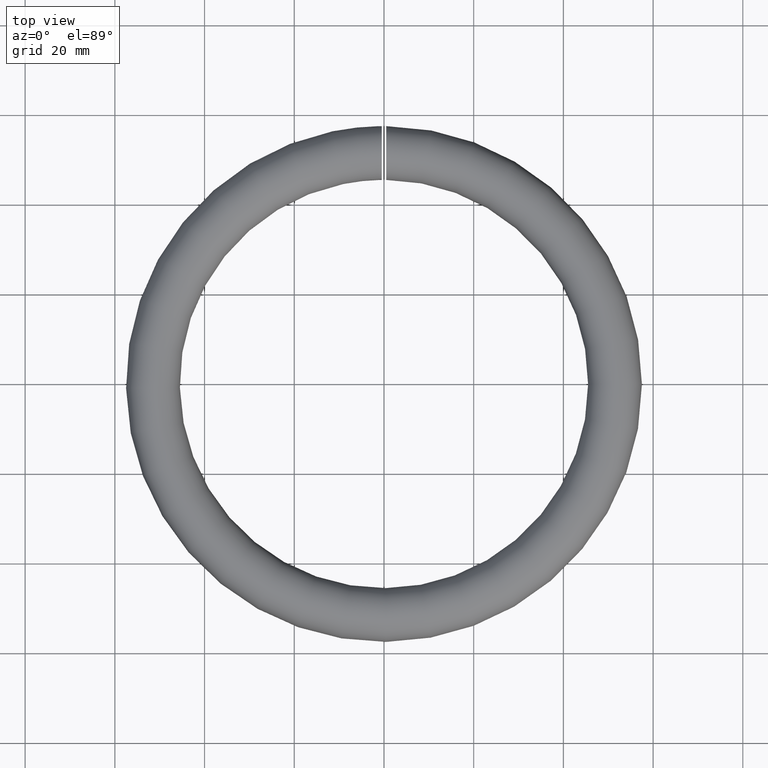
[diagram: clean part render]
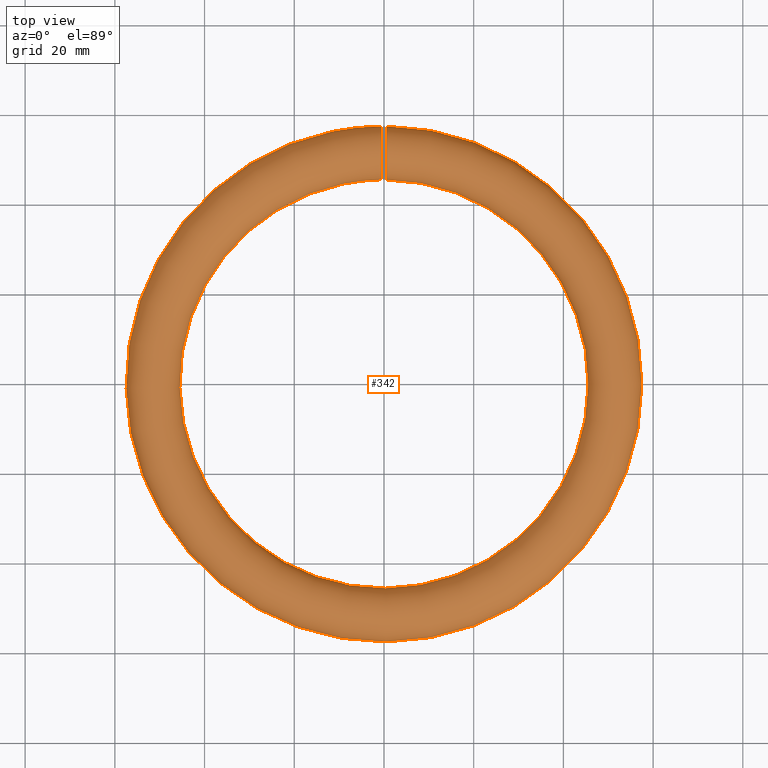
[diagram: same view with one face highlighted and labeled with its STEP entity id]
A machine part, top view. The second image highlights one B-rep face of the part: STEP entity #342.
In plain terms, the highlighted toroidal blend (fillet) surface has major radius 51.5 mm and minor (blend) radius 6 mm.
Its self-contained STEP definition (entity closure, byte-faithful):
#10 = CARTESIAN_POINT ( 'NONE',  ( -0.9179620124040548400, 45.76842501223460900, -1.804017274157504200 ) ) ;
#20 = CARTESIAN_POINT ( 'NONE',  ( -0.5000000000000000000, 45.49957517641046000, 0.3148097859573828500 ) ) ;
#49 = CARTESIAN_POINT ( 'NONE',  ( -0.5000000000000001100, 45.55122313939540400, 0.8461301988404297300 ) ) ;
#72 = CARTESIAN_POINT ( 'NONE',  ( -0.9999999999999458200, 45.90761121812014500, -2.201611370457569300 ) ) ;
#79 = CARTESIAN_POINT ( 'NONE',  ( -0.5000000000000001100, 45.76132208917330500, 1.760985417740103200 ) ) ;
#91 = CARTESIAN_POINT ( 'NONE',  ( 0.4999999999999998900, 54.02670736141599400, -5.444499195462920900 ) ) ;
#129 = CARTESIAN_POINT ( 'NONE',  ( -1.000000000000000000, 45.90220615707082900, -2.187812019814967100 ) ) ;
#160 = CARTESIAN_POINT ( 'NONE',  ( -0.7705680867293439600, 45.90739952802928800, -2.189265293628212200 ) ) ;
#163 = CARTESIAN_POINT ( 'NONE',  ( 0.4999999999999997800, 52.42120797418813500, 5.941379762480023500 ) ) ;
#243 = CARTESIAN_POINT ( 'NONE',  ( 0.4999999999999998900, 50.46231687184466400, 5.923039961871031000 ) ) ;
#291 = CARTESIAN_POINT ( 'NONE',  ( 0.5000000000000000000, 46.04158092334621000, -2.528242930976548400 ) ) ;
#342 = ADVANCED_FACE ( 'NONE', ( #8909, #9600 ), #6535, .T. ) ;
#372 = CARTESIAN_POINT ( 'NONE',  ( -0.5000000000000000000, 54.92417806533195100, 4.937627606192703100 ) ) ;
#456 = CARTESIAN_POINT ( 'NONE',  ( -0.4999999999999998900, 46.37742821344764400, 3.147558149794111400 ) ) ;
#491 = CARTESIAN_POINT ( 'NONE',  ( -0.5000000000000000000, 57.43902467030462600, 0.9073569362950142400 ) ) ;
#510 = CARTESIAN_POINT ( 'NONE',  ( -1.000000000000035700, 45.79214717049599400, -1.882798184896654600 ) ) ;
#541 = CARTESIAN_POINT ( 'NONE',  ( -0.5000000000000000000, 48.10209431327343300, -4.959379703118131000 ) ) ;
#571 = CARTESIAN_POINT ( 'NONE',  ( -0.5000000000000000000, 45.81578202283584000, -1.929697075605313100 ) ) ;
#611 = CARTESIAN_POINT ( 'NONE',  ( -0.7786524441768571900, 45.77075266325358900, -1.802538034448037500 ) ) ;
#619 = CARTESIAN_POINT ( 'NONE',  ( -0.5000000000000000000, 56.77211048576292300, 2.881418809495970300 ) ) ;
#655 = CARTESIAN_POINT ( 'NONE',  ( -0.5000000000000000000, 54.08375383184019100, -5.425366880214794700 ) ) ;
#659 = B_SPLINE_CURVE_WITH_KNOTS ( 'NONE', 3,
 ( #6730, #3130, #6805, #2416, #571, #5878 ),
 .UNSPECIFIED., .F., .F.,
 ( 4, 2, 4 ),
 ( 0.001932971461400299200, 0.002097493431344722700, 0.002262015401289146500 ),
 .UNSPECIFIED. ) ;
#664 = CARTESIAN_POINT ( 'NONE',  ( -0.5000000000000000000, 45.61278304241712800, -1.288762872369500600 ) ) ;
#704 = CARTESIAN_POINT ( 'NONE',  ( -1.000000000000000000, 45.76848764325509200, 1.809657481121427400 ) ) ;
#765 = CARTESIAN_POINT ( 'NONE',  ( -0.5000000000000002200, 45.65568821916286900, 1.369676404959427900 ) ) ;
#766 = VERTEX_POINT ( 'NONE', #9510 ) ;
#779 = B_SPLINE_CURVE_WITH_KNOTS ( 'NONE', 3,
 ( #3364, #10702, #611, #10, #7161, #7719, #6031 ),
 .UNSPECIFIED., .F., .F.,
 ( 4, 3, 4 ),
 ( 6.505213034913026600E-019, 0.0004180105945801995500, 0.0005000653353664220800 ),
 .UNSPECIFIED. ) ;
#806 = ORIENTED_EDGE ( 'NONE', *, *, #7562, .F. ) ;
#828 = CARTESIAN_POINT ( 'NONE',  ( -1.000000000000000000, 45.76699465159130400, -1.804932260004372900 ) ) ;
#856 = CARTESIAN_POINT ( 'NONE',  ( 0.5000000000000000000, 49.07218650690755600, -5.502067322898152900 ) ) ;
#892 = CARTESIAN_POINT ( 'NONE',  ( 0.5000000000000000000, 54.72485829750186800, -5.073603244698448500 ) ) ;
#924 = CARTESIAN_POINT ( 'NONE',  ( 0.5000000000000002200, 51.75083583727930400, -6.007619549338419200 ) ) ;
#971 = CARTESIAN_POINT ( 'NONE',  ( -0.5000000000000000000, 45.49136223346428000, 0.04542365232629493000 ) ) ;
#1003 = B_SPLINE_CURVE_WITH_KNOTS ( 'NONE', 3,
 ( #8157, #1138, #6330, #79, #7234 ),
 .UNSPECIFIED., .F., .F.,
 ( 4, 1, 4 ),
 ( 0.005714462627281691000, 0.005851836545391491500, 0.005989210463501292100 ),
 .UNSPECIFIED. ) ;
#1004 = CARTESIAN_POINT ( 'NONE',  ( 0.5000000000000002200, 54.20531013255667600, -5.357965039166761500 ) ) ;
#1010 = EDGE_CURVE ( 'NONE', #10824, #10609, #1003, .T. ) ;
#1063 = CARTESIAN_POINT ( 'NONE',  ( -0.9058303514467605000, 45.90440346742087000, -2.188430853918374100 ) ) ;
#1069 = CARTESIAN_POINT ( 'NONE',  ( 0.5000000000000001100, 45.58342687962009200, -1.032117468048084500 ) ) ;
#1113 = CARTESIAN_POINT ( 'NONE',  ( 0.5000000000000002200, 45.48945637846802000, -0.2480855919697929100 ) ) ;
#1138 = CARTESIAN_POINT ( 'NONE',  ( -0.4999999999999998900, 45.70979033820535900, 1.583431691464214800 ) ) ;
#1151 = CARTESIAN_POINT ( 'NONE',  ( 0.4999999999999997800, 45.63022107861294100, 1.315794795856261700 ) ) ;
#1174 = CARTESIAN_POINT ( 'NONE',  ( -0.9058210145293742500, 45.79593945511855000, 1.888259954786513500 ) ) ;
#1199 = CARTESIAN_POINT ( 'NONE',  ( -1.000000000000000000, 45.90220615707082900, -2.187812019814967100 ) ) ;
#1257 = CARTESIAN_POINT ( 'NONE',  ( 0.5000000000000000000, 46.89770814956862900, -3.852717948919957000 ) ) ;
#1390 = CARTESIAN_POINT ( 'NONE',  ( -1.000000000000012900, 45.68371754332535800, 1.515928655583395300 ) ) ;
#1414 = CARTESIAN_POINT ( 'NONE',  ( -0.5000000000000000000, 57.50627941211248400, -0.1393951492518330800 ) ) ;
#1430 = CARTESIAN_POINT ( 'NONE',  ( -0.5687934320838344800, 45.79789691567198400, -1.877684386701960800 ) ) ;
#1571 = CARTESIAN_POINT ( 'NONE',  ( -0.5000000000000000000, 57.29423470756735500, 1.588307659988299900 ) ) ;
#1574 = CARTESIAN_POINT ( 'NONE',  ( -1.000000000000000000, 45.76848764325509200, 1.809657481121427400 ) ) ;
#1653 = CARTESIAN_POINT ( 'NONE',  ( -1.000000000000035700, 45.79214717049599400, -1.882798184896654600 ) ) ;
#1672 = CARTESIAN_POINT ( 'NONE',  ( -0.5000000000000001100, 45.77527712442552900, 1.805216046153138100 ) ) ;
#1758 = CARTESIAN_POINT ( 'NONE',  ( 0.5000000000000001100, 52.53542133763882300, -5.912827832968703000 ) ) ;
#1790 = VERTEX_POINT ( 'NONE', #9186 ) ;
#1802 = CARTESIAN_POINT ( 'NONE',  ( 0.4999999999999998900, 57.28111288380075200, 1.610037283532852900 ) ) ;
#1841 = ORIENTED_EDGE ( 'NONE', *, *, #1957, .F. ) ;
#1842 = CARTESIAN_POINT ( 'NONE',  ( -1.000000000000012900, 45.68371754332535800, 1.515928655583395300 ) ) ;
#1843 = CARTESIAN_POINT ( 'NONE',  ( 0.5000000000000001100, 55.10802698193912600, 4.796312713675825500 ) ) ;
#1903 = CARTESIAN_POINT ( 'NONE',  ( 0.5000000000000001100, 52.33917600452583900, -5.943961382014308900 ) ) ;
#1922 = ORIENTED_EDGE ( 'NONE', *, *, #10379, .T. ) ;
#1957 = EDGE_CURVE ( 'NONE', #9876, #10861, #10526, .T. ) ;
#1983 = CARTESIAN_POINT ( 'NONE',  ( 0.5000000000000002200, 54.44944865071401800, 5.227368543370693600 ) ) ;
#2056 = CARTESIAN_POINT ( 'NONE',  ( 0.5000000000000000000, 45.55245853471327400, -0.8355671284773920100 ) ) ;
#2104 = CARTESIAN_POINT ( 'NONE',  ( 0.5000000000000000000, 48.27672311653416400, 5.077410275850143200 ) ) ;
#2108 = CARTESIAN_POINT ( 'NONE',  ( -0.5000000000000001100, 49.59073435962829300, 5.699533779703775900 ) ) ;
#2124 = CARTESIAN_POINT ( 'NONE',  ( -1.000000000000000000, 45.93521164591073400, -2.270273564140818900 ) ) ;
#2125 = CARTESIAN_POINT ( 'NONE',  ( -0.5000000000000000000, 45.80064736456861900, 1.883741151463105700 ) ) ;
#2145 = CARTESIAN_POINT ( 'NONE',  ( -0.5000000000000000000, 53.03291827095483100, 5.810638613227321300 ) ) ;
#2234 = CARTESIAN_POINT ( 'NONE',  ( -0.5000000000000000000, 45.80064736456861900, 1.883741151463105700 ) ) ;
#2304 = CARTESIAN_POINT ( 'NONE',  ( -0.5000000000000000000, 57.09778266047525400, -2.181986827632811800 ) ) ;
#2305 = B_SPLINE_CURVE_WITH_KNOTS ( 'NONE', 3,
 ( #2234, #8413, #4912, #456, #7439, #3069, #9305, #5800, #3963, #5724, #9389, #2108, #10090, #8451, #4748, #10972, #9231, #11021, #2145, #3925, #10180, #11058, #372, #6858, #4166, #9422, #6741, #619, #4950, #6006, #1571, #491, #9466, #1414, #11218, #10376, #6891, #2304, #7639, #2455, #5035, #2425, #4054, #4121, #3225, #3184, #655, #4087, #10341, #5960, #8698, #5890, #4989, #10408, #11333, #4205, #8618, #3255, #541, #6772, #11256, #5070, #11303, #3335, #8541, #5925 ),
 .UNSPECIFIED., .F., .F.,
 ( 4, 2, 2, 2, 2, 2, 2, 2, 2, 2, 2, 2, 2, 2, 2, 2, 2, 2, 2, 2, 2, 2, 2, 2, 2, 2, 2, 2, 2, 2, 2, 2, 4 ),
 ( 0.006070613831131638200, 0.007110925765235979300, 0.008151237699340320400, 0.009191549633444663300, 0.01023186156754900400, 0.01127217350165334600, 0.01231248543575768800, 0.01335279736986202900, 0.01439310930396637100, 0.01543342123807071200, 0.01647373317217505300, 0.01751404510627939400, 0.01855435704038373900, 0.01959466897448807600, 0.02063498090859242100, 0.02167529284269676200, 0.02271560477680110300, 0.02375591671090544400, 0.02479622864500978500, 0.02583654057911412600, 0.02687685251321846700, 0.02791716444732281200, 0.02895747638142715300, 0.02999778831553149400, 0.03103810024963583500, 0.03207841218374017600, 0.03311872411784451400, 0.03415903605194885900, 0.03519934798605320300, 0.03623965992015754100, 0.03727997185426188500, 0.03832028378836622300, 0.03936059572247056800 ),
 .UNSPECIFIED. ) ;
#2369 = CARTESIAN_POINT ( 'NONE',  ( -1.000000000000000000, 45.93521164591073400, -2.270273564140818900 ) ) ;
#2416 = CARTESIAN_POINT ( 'NONE',  ( -0.5000000000000000000, 45.83383607819065700, -1.982060704582367700 ) ) ;
#2425 = CARTESIAN_POINT ( 'NONE',  ( -0.5000000000000000000, 56.01657997773821100, -3.962440514287177300 ) ) ;
#2455 = CARTESIAN_POINT ( 'NONE',  ( -0.5000000000000000000, 56.63592612594786900, -3.117896575385051200 ) ) ;
#2467 = CARTESIAN_POINT ( 'NONE',  ( -0.5514487409054429400, 45.94326742050079600, -2.271433567011176700 ) ) ;
#2598 = CARTESIAN_POINT ( 'NONE',  ( -1.000000000000000000, 45.65413641094671200, 1.397780516882756200 ) ) ;
#2683 = CARTESIAN_POINT ( 'NONE',  ( 0.5000000000000001100, 56.95108286352587600, 2.532857100409795900 ) ) ;
#2714 = CARTESIAN_POINT ( 'NONE',  ( 0.5000000000000001100, 48.04778392720015000, -4.913139490739590400 ) ) ;
#2753 = CARTESIAN_POINT ( 'NONE',  ( 0.4999999999999997800, 47.15225206814983500, -4.156591849372298400 ) ) ;
#2792 = ORIENTED_EDGE ( 'NONE', *, *, #4221, .F. ) ;
#2793 = CARTESIAN_POINT ( 'NONE',  ( 0.5000000000000000000, 55.04778701155472500, -4.852854842199893600 ) ) ;
#2821 = CARTESIAN_POINT ( 'NONE',  ( 0.5000000000000000000, 46.27094137414346900, 2.953636254992678900 ) ) ;
#2851 = CARTESIAN_POINT ( 'NONE',  ( 0.5000000000000000000, 45.99729513720349400, 2.430071305816905000 ) ) ;
#2876 = ORIENTED_EDGE ( 'NONE', *, *, #5829, .T. ) ;
#2939 = CARTESIAN_POINT ( 'NONE',  ( 0.5000000000000000000, 45.48617483619187100, 0.1428226225285997600 ) ) ;
#2986 = B_SPLINE_CURVE_WITH_KNOTS ( 'NONE', 3,
 ( #5245, #664, #9854, #971, #20, #49, #6308, #5452 ),
 .UNSPECIFIED., .F., .F.,
 ( 4, 2, 2, 4 ),
 ( 0.002341831918934480500, 0.003941365330833759300, 0.004741132036783399600, 0.005540898742733039000 ),
 .UNSPECIFIED. ) ;
#3069 = CARTESIAN_POINT ( 'NONE',  ( -0.5000000000000001100, 47.00374433457168500, 3.991327355003517300 ) ) ;
#3082 = CARTESIAN_POINT ( 'NONE',  ( -0.5000000000000000000, 45.80064736456861900, 1.883741151463105700 ) ) ;
#3130 = CARTESIAN_POINT ( 'NONE',  ( -0.5000000000000000000, 45.89108484087720500, -2.138620763541226200 ) ) ;
#3184 = CARTESIAN_POINT ( 'NONE',  ( -0.5000000000000000000, 54.39256992575631200, -5.266896590291181300 ) ) ;
#3225 = CARTESIAN_POINT ( 'NONE',  ( -0.5000000000000000000, 54.98058719437919700, -4.897973246312205700 ) ) ;
#3255 = CARTESIAN_POINT ( 'NONE',  ( -0.5000000000000000000, 48.39478422357590400, -5.147224375631874500 ) ) ;
#3335 = CARTESIAN_POINT ( 'NONE',  ( -0.5000000000000001100, 46.23560447052742700, -2.904303260659503400 ) ) ;
#3343 = CARTESIAN_POINT ( 'NONE',  ( -0.5000000000000000000, 45.77384146477564300, -1.800659386381541700 ) ) ;
#3351 = CARTESIAN_POINT ( 'NONE',  ( -1.000000000000010900, 45.77109656085142600, -1.817933223992965800 ) ) ;
#3364 = CARTESIAN_POINT ( 'NONE',  ( -0.5000000000000000000, 45.77384146477564300, -1.800659386381541700 ) ) ;
#3372 = CARTESIAN_POINT ( 'NONE',  ( -0.8333507435059228600, 45.77148600835705100, 1.807626076317518700 ) ) ;
#3527 = CARTESIAN_POINT ( 'NONE',  ( 0.5000000000000001100, 57.43918867465390600, -0.9257438590981808000 ) ) ;
#3565 = CARTESIAN_POINT ( 'NONE',  ( 0.4999999999999998900, 56.57524286593718400, 3.220726790282420800 ) ) ;
#3675 = CARTESIAN_POINT ( 'NONE',  ( 0.4999999999999998900, 55.64802284552175100, -4.350675432551520700 ) ) ;
#3731 = ORIENTED_EDGE ( 'NONE', *, *, #8284, .F. ) ;
#3753 = VERTEX_POINT ( 'NONE', #1257 ) ;
#3759 = CARTESIAN_POINT ( 'NONE',  ( 0.4999999999999998900, 45.88824398312286200, -2.165985511410180500 ) ) ;
#3856 = CARTESIAN_POINT ( 'NONE',  ( -0.9999999999999412700, 45.91851740725836400, -2.229154187750880000 ) ) ;
#3858 = CARTESIAN_POINT ( 'NONE',  ( -0.7391616519760703100, 45.79829749968644100, 1.885946224339614600 ) ) ;
#3875 = CARTESIAN_POINT ( 'NONE',  ( 0.4999999999999998900, 46.70265687518701700, 3.612389037060024200 ) ) ;
#3911 = DIRECTION ( 'NONE',  ( -1.000000000000000000, 0.0000000000000000000, 0.0000000000000000000 ) ) ;
#3925 = CARTESIAN_POINT ( 'NONE',  ( -0.5000000000000000000, 53.69305514324499700, 5.594719309508961100 ) ) ;
#3963 = CARTESIAN_POINT ( 'NONE',  ( -0.5000000000000000000, 48.04071146305433600, 4.916707173716183400 ) ) ;
#4054 = CARTESIAN_POINT ( 'NONE',  ( -0.5000000000000000000, 55.78047566221002300, -4.216673843654113800 ) ) ;
#4087 = CARTESIAN_POINT ( 'NONE',  ( -0.5000000000000000000, 53.43581154984143200, -5.689104462453715700 ) ) ;
#4121 = CARTESIAN_POINT ( 'NONE',  ( -0.5000000000000000000, 55.26224570259153500, -4.685134128299497800 ) ) ;
#4166 = CARTESIAN_POINT ( 'NONE',  ( -0.5000000000000000000, 55.72999205690111800, 4.267269194537848700 ) ) ;
#4203 = CARTESIAN_POINT ( 'NONE',  ( -1.000000000000012900, 45.68371754332535800, 1.515928655583395300 ) ) ;
#4205 = CARTESIAN_POINT ( 'NONE',  ( -0.5000000000000000000, 49.33096916066632100, -5.606193535926324000 ) ) ;
#4217 = B_SPLINE_CURVE_WITH_KNOTS ( 'NONE', 3,
 ( #6228, #2753, #8924, #5371, #2714, #4545, #7246, #856, #4513, #10761, #6339, #5412, #924, #1903, #1758, #10787, #8058, #9900, #91, #1004, #892, #2793, #3675, #8133, #9931, #4587, #5295, #11525, #6193, #7984, #8877, #3527, #9784, #4436, #10674, #5334, #7135, #1802, #8017, #2683, #3565, #4482, #10715, #7171, #1843, #7433, #9099, #1983, #7346, #4622, #6452, #163, #5599, #6488, #243, #7310, #10965, #4742, #8208, #7398, #2104, #4653, #10855, #6417, #3875, #8289, #7278, #2821, #2851, #9066, #1151, #8322, #2939, #1113, #2056, #1069, #10044, #5632, #3759, #291, #9179, #9225, #9997 ),
 .UNSPECIFIED., .T., .F.,
 ( 4, 2, 2, 2, 2, 2, 2, 2, 1, 2, 2, 2, 2, 2, 2, 2, 2, 2, 2, 2, 2, 2, 2, 2, 2, 2, 2, 2, 2, 2, 2, 2, 2, 2, 2, 2, 2, 2, 2, 2, 2, 4 ),
 ( 0.0000000000000000000, 0.001172316599238818400, 0.001758474898858228400, 0.002344633198477638900, 0.003516949797716459000, 0.004689266396955279500, 0.005861582996194100000, 0.006447741295813520300, 0.007033899595432940500, 0.007620057895052361600, 0.008206216194671782700, 0.009378532793910621500, 0.01055084939314946000, 0.01172316599238830100, 0.01230932429200772000, 0.01289548259162713800, 0.01406779919086598300, 0.01524011579010482900, 0.01582627408972425400, 0.01641243238934367600, 0.01758474898858252600, 0.01875706558782137100, 0.01992938218706021700, 0.02051554048667965000, 0.02110169878629907700, 0.02227401538553796700, 0.02344633198477685100, 0.02461864858401573500, 0.02579096518325461900, 0.02637712348287406200, 0.02696328178249350300, 0.02813559838173238700, 0.02930791498097127400, 0.02989407328059070700, 0.03048023158021014400, 0.03165254817944901400, 0.03282486477868788700, 0.03399718137792676100, 0.03458333967754619000, 0.03516949797716562700, 0.03634181457640449400, 0.03751413117564336000 ),
 .UNSPECIFIED. ) ;
#4221 = EDGE_CURVE ( 'NONE', #10327, #10609, #10665, .T. ) ;
#4332 = CARTESIAN_POINT ( 'NONE',  ( -0.5771726584736450700, 45.94292502113958000, -2.271386543289453600 ) ) ;
#4390 = CARTESIAN_POINT ( 'NONE',  ( -0.5000000000000002200, 45.65568821916286900, 1.369676404959427900 ) ) ;
#4398 = CARTESIAN_POINT ( 'NONE',  ( -0.9999999999999373800, 45.77699417140353700, 1.836378577473586600 ) ) ;
#4436 = CARTESIAN_POINT ( 'NONE',  ( 0.4999999999999997800, 57.50510157539653000, 0.2557702402579838400 ) ) ;
#4482 = CARTESIAN_POINT ( 'NONE',  ( 0.5000000000000000000, 56.35008781709913700, 3.550837659983789000 ) ) ;
#4508 = B_SPLINE_CURVE_WITH_KNOTS ( 'NONE', 3,
 ( #8814, #6050, #7814, #4332, #2467, #5254, #10648 ),
 .UNSPECIFIED., .F., .F.,
 ( 4, 3, 4 ),
 ( 0.0000000000000000000, 0.0004228991553813403500, 0.0005000769414640831400 ),
 .UNSPECIFIED. ) ;
#4513 = CARTESIAN_POINT ( 'NONE',  ( 0.5000000000000001100, 49.43476738003914800, -5.647918703601066100 ) ) ;
#4545 = CARTESIAN_POINT ( 'NONE',  ( 0.5000000000000001100, 48.37738980844388000, -5.128763549007850000 ) ) ;
#4576 = EDGE_CURVE ( 'NONE', #1790, #8750, #659, .T. ) ;
#4587 = CARTESIAN_POINT ( 'NONE',  ( 0.5000000000000001100, 56.63344289084413700, -3.127230005304531900 ) ) ;
#4622 = CARTESIAN_POINT ( 'NONE',  ( 0.4999999999999998900, 53.56421885478879100, 5.646726986881783500 ) ) ;
#4640 = CARTESIAN_POINT ( 'NONE',  ( -0.9999999999999419400, 45.79445022478172700, 1.889750817244155900 ) ) ;
#4653 = CARTESIAN_POINT ( 'NONE',  ( 0.5000000000000000000, 47.95301496283495600, 4.857354342402031100 ) ) ;
#4742 = CARTESIAN_POINT ( 'NONE',  ( 0.5000000000000000000, 49.33098666205125900, 5.598684460518764000 ) ) ;
#4748 = CARTESIAN_POINT ( 'NONE',  ( -0.5000000000000000000, 50.95725780094897300, 5.985695297275976000 ) ) ;
#4800 = CARTESIAN_POINT ( 'NONE',  ( -0.8587290383612594700, 45.79660575419045900, 1.887606177300535500 ) ) ;
#4870 = ORIENTED_EDGE ( 'NONE', *, *, #10369, .T. ) ;
#4912 = CARTESIAN_POINT ( 'NONE',  ( -0.5000000000000000000, 46.04887201353832200, 2.536739688701522300 ) ) ;
#4950 = CARTESIAN_POINT ( 'NONE',  ( -0.5000000000000000000, 56.93274807563829400, 2.565646677686900500 ) ) ;
#4989 = CARTESIAN_POINT ( 'NONE',  ( -0.5000000000000000000, 51.02544033031174600, -5.991443963735512100 ) ) ;
#5032 = CARTESIAN_POINT ( 'NONE',  ( -1.000000000000000000, 45.65413641094671200, 1.397780516882756200 ) ) ;
#5035 = CARTESIAN_POINT ( 'NONE',  ( -0.5000000000000000000, 56.44356163206567300, -3.414658012085948000 ) ) ;
#5070 = CARTESIAN_POINT ( 'NONE',  ( -0.5000000000000000000, 46.81797469586763300, -3.771806857635586800 ) ) ;
#5126 = EDGE_CURVE ( 'NONE', #9630, #11419, #11166, .T. ) ;
#5142 = ORIENTED_EDGE ( 'NONE', *, *, #8642, .F. ) ;
#5221 = ORIENTED_EDGE ( 'NONE', *, *, #4576, .T. ) ;
#5228 = CARTESIAN_POINT ( 'NONE',  ( -1.000000000000035700, 45.79214717049599400, -1.882798184896654600 ) ) ;
#5245 = CARTESIAN_POINT ( 'NONE',  ( -0.5000000000000000000, 45.77384146477564300, -1.800659386381541700 ) ) ;
#5254 = CARTESIAN_POINT ( 'NONE',  ( -0.5257245001304436900, 45.94358680011961800, -2.271477128874696700 ) ) ;
#5278 = VERTEX_POINT ( 'NONE', #1199 ) ;
#5295 = CARTESIAN_POINT ( 'NONE',  ( 0.5000000000000001100, 56.90649758306589200, -2.604735115006764800 ) ) ;
#5334 = CARTESIAN_POINT ( 'NONE',  ( 0.5000000000000000000, 57.41165207156784300, 1.032157954679068500 ) ) ;
#5338 = CARTESIAN_POINT ( 'NONE',  ( -0.9999999999999399400, 45.78564857280729700, 1.863077342856710700 ) ) ;
#5371 = CARTESIAN_POINT ( 'NONE',  ( 0.5000000000000000000, 47.88929666315654300, -4.797902163337907300 ) ) ;
#5412 = CARTESIAN_POINT ( 'NONE',  ( 0.5000000000000000000, 51.35977955970360400, -6.011174370267592200 ) ) ;
#5452 = CARTESIAN_POINT ( 'NONE',  ( -0.5000000000000002200, 45.65568821916286900, 1.369676404959427900 ) ) ;
#5566 = EDGE_CURVE ( 'NONE', #6509, #10327, #10004, .T. ) ;
#5599 = CARTESIAN_POINT ( 'NONE',  ( 0.5000000000000000000, 51.64193047239989200, 6.011004832724130300 ) ) ;
#5632 = CARTESIAN_POINT ( 'NONE',  ( 0.5000000000000002200, 45.71304873219996500, -1.606554822145633200 ) ) ;
#5724 = CARTESIAN_POINT ( 'NONE',  ( -0.5000000000000001100, 48.63634193831349300, 5.285533785004235000 ) ) ;
#5800 = CARTESIAN_POINT ( 'NONE',  ( -0.5000000000000001100, 47.75952769633660500, 4.706244198289719600 ) ) ;
#5819 = CARTESIAN_POINT ( 'NONE',  ( -0.9021319605535446100, 45.79378206425919000, -1.881278608246472300 ) ) ;
#5829 = EDGE_CURVE ( 'NONE', #8054, #766, #2305, .T. ) ;
#5878 = CARTESIAN_POINT ( 'NONE',  ( -0.5000000000000000000, 45.79848412869857600, -1.877187053730878600 ) ) ;
#5890 = CARTESIAN_POINT ( 'NONE',  ( -0.5000000000000000000, 51.37617237299385700, -6.008990978196377100 ) ) ;
#5925 = CARTESIAN_POINT ( 'NONE',  ( -0.5000000000000000000, 45.94388320973802600, -2.271517353066007300 ) ) ;
#5953 = VERTEX_POINT ( 'NONE', #765 ) ;
#5960 = CARTESIAN_POINT ( 'NONE',  ( -0.5000000000000000000, 52.42083384828955400, -5.938688981245709500 ) ) ;
#6006 = CARTESIAN_POINT ( 'NONE',  ( -0.5000000000000000000, 57.19297806477034400, 1.919965203799679300 ) ) ;
#6031 = CARTESIAN_POINT ( 'NONE',  ( -1.000000000000000000, 45.76699465159130400, -1.804932260004372900 ) ) ;
#6050 = CARTESIAN_POINT ( 'NONE',  ( -0.8590724333343369200, 45.93848227293645400, -2.270769233747869100 ) ) ;
#6135 = ORIENTED_EDGE ( 'NONE', *, *, #9624, .F. ) ;
#6193 = CARTESIAN_POINT ( 'NONE',  ( 0.5000000000000001100, 57.13708086451428900, -2.058517246712302700 ) ) ;
#6225 = VERTEX_POINT ( 'NONE', #2369 ) ;
#6228 = CARTESIAN_POINT ( 'NONE',  ( 0.4999999999999997800, 46.89770814956862200, -3.852717948919957000 ) ) ;
#6308 = CARTESIAN_POINT ( 'NONE',  ( -0.5000000000000001100, 45.59461172501822500, 1.109205052794802300 ) ) ;
#6330 = CARTESIAN_POINT ( 'NONE',  ( -0.5000000000000000000, 45.73448966110589700, 1.672365541594512200 ) ) ;
#6336 = CARTESIAN_POINT ( 'NONE',  ( -0.5000000000000000000, 45.91134802273418800, -2.190295075913613900 ) ) ;
#6339 = CARTESIAN_POINT ( 'NONE',  ( 0.5000000000000002200, 50.57995347361611500, -5.942327650992453400 ) ) ;
#6394 = ORIENTED_EDGE ( 'NONE', *, *, #10756, .F. ) ;
#6417 = CARTESIAN_POINT ( 'NONE',  ( 0.5000000000000001100, 47.07048507990647600, 4.068863347476526100 ) ) ;
#6444 = DIRECTION ( 'NONE',  ( -0.0000000000000000000, -0.0000000000000000000, -1.000000000000000000 ) ) ;
#6452 = CARTESIAN_POINT ( 'NONE',  ( 0.4999999999999998900, 52.80572914765242100, 5.868990432130845900 ) ) ;
#6488 = CARTESIAN_POINT ( 'NONE',  ( 0.5000000000000000000, 51.24280100657102800, 6.007424720869567000 ) ) ;
#6509 = VERTEX_POINT ( 'NONE', #8113 ) ;
#6535 = TOROIDAL_SURFACE ( 'NONE', #10829, 51.50000000000000700, 6.000000000000000000 ) ;
#6597 = CARTESIAN_POINT ( 'NONE',  ( -0.9529114844964115000, 45.79522053219135100, 1.888973685958169200 ) ) ;
#6602 = CARTESIAN_POINT ( 'NONE',  ( 0.0000000000000000000, 0.0000000000000000000, 0.0000000000000000000 ) ) ;
#6714 = VERTEX_POINT ( 'NONE', #3343 ) ;
#6730 = CARTESIAN_POINT ( 'NONE',  ( -0.5000000000000000000, 45.91134802273418800, -2.190295075913613900 ) ) ;
#6741 = CARTESIAN_POINT ( 'NONE',  ( -0.5000000000000000000, 56.40387146099125500, 3.471490818895179900 ) ) ;
#6753 = CARTESIAN_POINT ( 'NONE',  ( -0.7063743173228368400, 45.79636561248582900, -1.879006161328528900 ) ) ;
#6772 = CARTESIAN_POINT ( 'NONE',  ( -0.5000000000000000000, 47.54619067061068400, -4.528987851958280700 ) ) ;
#6805 = CARTESIAN_POINT ( 'NONE',  ( -0.5000000000000000000, 45.87147442839579300, -2.086491707996810200 ) ) ;
#6826 = ORIENTED_EDGE ( 'NONE', *, *, #5126, .F. ) ;
#6858 = CARTESIAN_POINT ( 'NONE',  ( -0.5000000000000000000, 55.47131144968049200, 4.509050372245899200 ) ) ;
#6891 = CARTESIAN_POINT ( 'NONE',  ( -0.5000000000000000000, 57.31224612392836100, -1.520916988868104000 ) ) ;
#6942 = CARTESIAN_POINT ( 'NONE',  ( -1.000000000000006900, 45.77939048669582400, -1.843911860198618900 ) ) ;
#6969 = CARTESIAN_POINT ( 'NONE',  ( -0.6666789396064084500, 45.77375855257042000, 1.806173396681433500 ) ) ;
#7080 = B_SPLINE_CURVE_WITH_KNOTS ( 'NONE', 3,
 ( #11410, #10606, #8961, #1842 ),
 .UNSPECIFIED., .F., .F.,
 ( 4, 4 ),
 ( 1.749581517051897800E-016, 0.0005007365648930976800 ),
 .UNSPECIFIED. ) ;
#7083 = CARTESIAN_POINT ( 'NONE',  ( -0.6668801021495958100, 45.65516684049516300, 1.375246986666939700 ) ) ;
#7135 = CARTESIAN_POINT ( 'NONE',  ( 0.5000000000000000000, 57.33130525359595000, 1.417453196860943200 ) ) ;
#7157 = B_SPLINE_CURVE_WITH_KNOTS ( 'NONE', 3,
 ( #510, #5819, #9401, #6753, #11230, #1430, #7706 ),
 .UNSPECIFIED., .F., .F.,
 ( 4, 3, 4 ),
 ( 0.0000000000000000000, 0.0002936804661927891700, 0.0005000730292950208000 ),
 .UNSPECIFIED. ) ;
#7161 = CARTESIAN_POINT ( 'NONE',  ( -0.9453085066162981700, 45.76796809390567900, -1.804307649188223300 ) ) ;
#7171 = CARTESIAN_POINT ( 'NONE',  ( 0.4999999999999997800, 55.56852957216322200, 4.425397937903153600 ) ) ;
#7207 = CARTESIAN_POINT ( 'NONE',  ( -0.9999999999999365000, 45.77271631752006400, 1.823021742709158600 ) ) ;
#7234 = CARTESIAN_POINT ( 'NONE',  ( -0.5000000000000001100, 45.77527712442552900, 1.805216046153138100 ) ) ;
#7246 = CARTESIAN_POINT ( 'NONE',  ( 0.5000000000000000000, 48.54908439361941000, -5.229335607433138300 ) ) ;
#7278 = CARTESIAN_POINT ( 'NONE',  ( 0.4999999999999998900, 46.37171462549906700, 3.125220116775373500 ) ) ;
#7288 = B_SPLINE_CURVE_WITH_KNOTS ( 'NONE', 3,
 ( #6336, #9096, #160, #1063, #8095, #7307, #129 ),
 .UNSPECIFIED., .F., .F.,
 ( 4, 3, 4 ),
 ( 2.168404344971008900E-019, 0.0004058940456911733000, 0.0005000901212710744700 ),
 .UNSPECIFIED. ) ;
#7307 = CARTESIAN_POINT ( 'NONE',  ( -0.9686110950233101100, 45.90297581738450800, -2.188031170538618800 ) ) ;
#7310 = CARTESIAN_POINT ( 'NONE',  ( 0.4999999999999998900, 50.07976231653962900, 5.843310440616883200 ) ) ;
#7346 = CARTESIAN_POINT ( 'NONE',  ( 0.5000000000000001100, 53.92990612958996600, 5.498817347728705200 ) ) ;
#7381 = EDGE_CURVE ( 'NONE', #10861, #5953, #8520, .T. ) ;
#7398 = CARTESIAN_POINT ( 'NONE',  ( 0.4999999999999998900, 48.79147442017404800, 5.358730397491986400 ) ) ;
#7431 = CARTESIAN_POINT ( 'NONE',  ( -0.5000000000000000000, 45.79848412869857600, -1.877187053730878600 ) ) ;
#7433 = CARTESIAN_POINT ( 'NONE',  ( 0.5000000000000001100, 54.94716719090431000, 4.913243400720265400 ) ) ;
#7439 = CARTESIAN_POINT ( 'NONE',  ( -0.5000000000000000000, 46.56913803969544600, 3.440372860984128000 ) ) ;
#7510 = B_SPLINE_CURVE_WITH_KNOTS ( 'NONE', 3,
 ( #8979, #72, #3856, #8350, #2124 ),
 .UNSPECIFIED., .F., .F.,
 ( 4, 1, 4 ),
 ( 8.973163176726411200E-005, 0.0001336689862256932200, 0.0001776063406841223500 ),
 .UNSPECIFIED. ) ;
#7545 = CARTESIAN_POINT ( 'NONE',  ( -0.5000000000000000000, 45.69796934644379900, 1.538886950953616300 ) ) ;
#7562 = EDGE_CURVE ( 'NONE', #1790, #5278, #7288, .T. ) ;
#7639 = CARTESIAN_POINT ( 'NONE',  ( -0.5000000000000000000, 56.96264927651100200, -2.501434646830162500 ) ) ;
#7668 = EDGE_LOOP ( 'NONE', ( #1922 ) ) ;
#7706 = CARTESIAN_POINT ( 'NONE',  ( -0.5000000000000000000, 45.79848412869857600, -1.877187053730878600 ) ) ;
#7719 = CARTESIAN_POINT ( 'NONE',  ( -0.9726545254802481100, 45.76749126139516500, -1.804612510555027200 ) ) ;
#7814 = CARTESIAN_POINT ( 'NONE',  ( -0.7181263222434731700, 45.94104885106133900, -2.271128877798054700 ) ) ;
#7984 = CARTESIAN_POINT ( 'NONE',  ( 0.5000000000000000000, 57.20124219855711800, -1.873268213995807900 ) ) ;
#8017 = CARTESIAN_POINT ( 'NONE',  ( 0.5000000000000000000, 57.10422433170735000, 2.173250464082102400 ) ) ;
#8054 = VERTEX_POINT ( 'NONE', #3082 ) ;
#8058 = CARTESIAN_POINT ( 'NONE',  ( 0.5000000000000001100, 53.29842502392802600, -5.733372446884893700 ) ) ;
#8095 = CARTESIAN_POINT ( 'NONE',  ( -0.9372211591352992400, 45.90370816069523800, -2.188237202447922000 ) ) ;
#8113 = CARTESIAN_POINT ( 'NONE',  ( -0.9999999999999419400, 45.79445022478172700, 1.889750817244155900 ) ) ;
#8133 = CARTESIAN_POINT ( 'NONE',  ( 0.5000000000000001100, 55.92771984796247900, -4.065636631371106100 ) ) ;
#8157 = CARTESIAN_POINT ( 'NONE',  ( -0.5000000000000000000, 45.69796934644379900, 1.538886950953616300 ) ) ;
#8208 = CARTESIAN_POINT ( 'NONE',  ( 0.5000000000000000000, 48.96795862622616400, 5.444317013232612200 ) ) ;
#8284 = EDGE_CURVE ( 'NONE', #6225, #766, #4508, .T. ) ;
#8289 = CARTESIAN_POINT ( 'NONE',  ( 0.5000000000000002200, 46.58736825652294300, 3.454138951554818400 ) ) ;
#8322 = CARTESIAN_POINT ( 'NONE',  ( 0.4999999999999998900, 45.55577476722847100, 0.9231713689859925000 ) ) ;
#8350 = CARTESIAN_POINT ( 'NONE',  ( -0.9999999999999365000, 45.92961508627204400, -2.256585611805736600 ) ) ;
#8352 = CARTESIAN_POINT ( 'NONE',  ( -0.6195830948227006900, 45.79964944113940800, 1.884671159578758200 ) ) ;
#8413 = CARTESIAN_POINT ( 'NONE',  ( -0.5000000000000000000, 45.91100746809701900, 2.217461365281701500 ) ) ;
#8451 = CARTESIAN_POINT ( 'NONE',  ( -0.5000000000000001100, 50.61259535430333800, 5.944678944077877800 ) ) ;
#8520 = B_SPLINE_CURVE_WITH_KNOTS ( 'NONE', 3,
 ( #2598, #10672, #7083, #4390 ),
 .UNSPECIFIED., .F., .F.,
 ( 4, 4 ),
 ( 0.0000000000000000000, 0.0005007916225494776800 ),
 .UNSPECIFIED. ) ;
#8539 = CARTESIAN_POINT ( 'NONE',  ( -1.000000000000014400, 45.65887047082254900, 1.417537698444452800 ) ) ;
#8541 = CARTESIAN_POINT ( 'NONE',  ( -0.5000000000000000000, 46.07647563582272500, -2.595659569383450100 ) ) ;
#8618 = CARTESIAN_POINT ( 'NONE',  ( -0.5000000000000000000, 49.00846439948838200, -5.470393330709312900 ) ) ;
#8628 = ORIENTED_EDGE ( 'NONE', *, *, #9284, .F. ) ;
#8642 = EDGE_CURVE ( 'NONE', #10824, #9876, #7080, .T. ) ;
#8698 = CARTESIAN_POINT ( 'NONE',  ( -0.5000000000000000000, 52.07629381896759900, -5.982292415438830200 ) ) ;
#8750 = VERTEX_POINT ( 'NONE', #7431 ) ;
#8781 = CARTESIAN_POINT ( 'NONE',  ( -1.000000000000002700, 45.78786483368614300, -1.869843859483834700 ) ) ;
#8814 = CARTESIAN_POINT ( 'NONE',  ( -1.000000000000000000, 45.93521164591073400, -2.270273564140818900 ) ) ;
#8877 = CARTESIAN_POINT ( 'NONE',  ( 0.5000000000000000000, 57.36601598069991300, -1.310404899444218300 ) ) ;
#8909 = FACE_OUTER_BOUND ( 'NONE', #7668, .T. ) ;
#8924 = CARTESIAN_POINT ( 'NONE',  ( 0.4999999999999998900, 47.43235955443918800, -4.430410836045649800 ) ) ;
#8961 = CARTESIAN_POINT ( 'NONE',  ( -0.8336731877611207600, 45.69072122026564400, 1.528803780057058600 ) ) ;
#8979 = CARTESIAN_POINT ( 'NONE',  ( -1.000000000000000000, 45.90220615707082900, -2.187812019814967100 ) ) ;
#9066 = CARTESIAN_POINT ( 'NONE',  ( 0.5000000000000000000, 45.85113727308883800, 2.067513258789131400 ) ) ;
#9096 = CARTESIAN_POINT ( 'NONE',  ( -0.6352874209552307200, 45.90970867389462000, -2.189871765214951100 ) ) ;
#9099 = CARTESIAN_POINT ( 'NONE',  ( 0.4999999999999998900, 54.61829440629193800, 5.128408440927996600 ) ) ;
#9144 = EDGE_CURVE ( 'NONE', #5278, #6225, #7510, .T. ) ;
#9178 = ORIENTED_EDGE ( 'NONE', *, *, #1010, .T. ) ;
#9179 = CARTESIAN_POINT ( 'NONE',  ( 0.5000000000000000000, 46.42107985465406700, -3.223140618385507100 ) ) ;
#9186 = CARTESIAN_POINT ( 'NONE',  ( -0.5000000000000000000, 45.91134802273418800, -2.190295075913613900 ) ) ;
#9211 = ORIENTED_EDGE ( 'NONE', *, *, #9144, .F. ) ;
#9225 = CARTESIAN_POINT ( 'NONE',  ( 0.4999999999999998900, 46.64316423098740200, -3.548844048467604900 ) ) ;
#9231 = CARTESIAN_POINT ( 'NONE',  ( -0.5000000000000000000, 52.00361911236404900, 5.988816199504726400 ) ) ;
#9284 = EDGE_CURVE ( 'NONE', #11419, #8750, #7157, .T. ) ;
#9305 = CARTESIAN_POINT ( 'NONE',  ( -0.5000000000000000000, 47.24210882992663600, 4.244193978752854900 ) ) ;
#9387 = CARTESIAN_POINT ( 'NONE',  ( -1.000000000000013500, 45.66853504846705600, 1.456986126023630100 ) ) ;
#9389 = CARTESIAN_POINT ( 'NONE',  ( -0.5000000000000000000, 48.94648635657840400, 5.441779627676255300 ) ) ;
#9401 = CARTESIAN_POINT ( 'NONE',  ( -0.8042554497439323700, 45.79519275353015200, -1.880027657166357700 ) ) ;
#9422 = CARTESIAN_POINT ( 'NONE',  ( -0.5000000000000000000, 56.19550261603257000, 3.748701209227388800 ) ) ;
#9466 = CARTESIAN_POINT ( 'NONE',  ( -0.5000000000000000000, 57.48214858009527700, 0.5557119146504222500 ) ) ;
#9510 = CARTESIAN_POINT ( 'NONE',  ( -0.5000000000000000000, 45.94388320973802600, -2.271517353066007300 ) ) ;
#9539 = CARTESIAN_POINT ( 'NONE',  ( -1.000000000000000000, 45.76699465159130400, -1.804932260004372900 ) ) ;
#9578 = B_SPLINE_CURVE_WITH_KNOTS ( 'NONE', 3,
 ( #2125, #8352, #3858, #4800, #1174, #6597, #4640 ),
 .UNSPECIFIED., .F., .F.,
 ( 4, 3, 4 ),
 ( 2.168404344971008900E-019, 0.0003587726243775668900, 0.0005000752426090287900 ),
 .UNSPECIFIED. ) ;
#9600 = FACE_OUTER_BOUND ( 'NONE', #10595, .T. ) ;
#9624 = EDGE_CURVE ( 'NONE', #6714, #9630, #779, .T. ) ;
#9630 = VERTEX_POINT ( 'NONE', #9539 ) ;
#9784 = CARTESIAN_POINT ( 'NONE',  ( 0.4999999999999996700, 57.50932296565255100, -0.1368501309009918500 ) ) ;
#9854 = CARTESIAN_POINT ( 'NONE',  ( -0.5000000000000000000, 45.52160100801087600, -0.7633382817342447800 ) ) ;
#9876 = VERTEX_POINT ( 'NONE', #1390 ) ;
#9900 = CARTESIAN_POINT ( 'NONE',  ( 0.4999999999999998900, 53.66548492613098600, -5.598133666176980900 ) ) ;
#9931 = CARTESIAN_POINT ( 'NONE',  ( 0.4999999999999998900, 56.41941322590454900, -3.454196243238290400 ) ) ;
#9997 = CARTESIAN_POINT ( 'NONE',  ( 0.4999999999999997800, 46.89770814956862200, -3.852717948919957000 ) ) ;
#10004 = B_SPLINE_CURVE_WITH_KNOTS ( 'NONE', 3,
 ( #10615, #10678, #5338, #4398, #7207, #10646 ),
 .UNSPECIFIED., .F., .F.,
 ( 4, 2, 4 ),
 ( 0.03750557027032275900, 0.03754710785668940300, 0.03758864544305604700 ),
 .UNSPECIFIED. ) ;
#10044 = CARTESIAN_POINT ( 'NONE',  ( 0.4999999999999998900, 45.66369658226454900, -1.417099120052862600 ) ) ;
#10090 = CARTESIAN_POINT ( 'NONE',  ( -0.5000000000000000000, 49.92787135565202300, 5.801602755989834200 ) ) ;
#10180 = CARTESIAN_POINT ( 'NONE',  ( -0.5000000000000000000, 54.01838398791672100, 5.455983404463340000 ) ) ;
#10233 = CARTESIAN_POINT ( 'NONE',  ( -1.000000000000000000, 45.65413641094671200, 1.397780516882756200 ) ) ;
#10327 = VERTEX_POINT ( 'NONE', #1574 ) ;
#10341 = CARTESIAN_POINT ( 'NONE',  ( -0.5000000000000000000, 53.09918826688786500, -5.792704145330077400 ) ) ;
#10369 = EDGE_CURVE ( 'NONE', #6714, #5953, #2986, .T. ) ;
#10376 = CARTESIAN_POINT ( 'NONE',  ( -0.5000000000000000000, 57.39177536531696000, -1.175894283293120700 ) ) ;
#10379 = EDGE_CURVE ( 'NONE', #3753, #3753, #4217, .T. ) ;
#10408 = CARTESIAN_POINT ( 'NONE',  ( -0.5000000000000000000, 50.33819400611528000, -5.897139896829235900 ) ) ;
#10526 = B_SPLINE_CURVE_WITH_KNOTS ( 'NONE', 3,
 ( #4203, #11331, #9387, #8539, #5032 ),
 .UNSPECIFIED., .F., .F.,
 ( 4, 1, 4 ),
 ( 0.03729783319631532800, 0.03735801502047873100, 0.03741819684464213500 ),
 .UNSPECIFIED. ) ;
#10595 = EDGE_LOOP ( 'NONE', ( #3731, #9211, #806, #5221, #8628, #6826, #6135, #4870, #10885, #1841, #5142, #9178, #2792, #11239, #6394, #2876 ) ) ;
#10606 = CARTESIAN_POINT ( 'NONE',  ( -0.6668677989926320400, 45.69504210071222900, 1.534736281397272300 ) ) ;
#10609 = VERTEX_POINT ( 'NONE', #1672 ) ;
#10615 = CARTESIAN_POINT ( 'NONE',  ( -0.9999999999999419400, 45.79445022478172700, 1.889750817244155900 ) ) ;
#10646 = CARTESIAN_POINT ( 'NONE',  ( -1.000000000000000000, 45.76848764325509200, 1.809657481121427400 ) ) ;
#10648 = CARTESIAN_POINT ( 'NONE',  ( -0.5000000000000000000, 45.94388320973802600, -2.271517353066007300 ) ) ;
#10665 = B_SPLINE_CURVE_WITH_KNOTS ( 'NONE', 3,
 ( #704, #3372, #6969, #11261 ),
 .UNSPECIFIED., .F., .F.,
 ( 4, 4 ),
 ( 0.0000000000000000000, 0.0005000658190669914800 ),
 .UNSPECIFIED. ) ;
#10672 = CARTESIAN_POINT ( 'NONE',  ( -0.8335505650344768900, 45.65461098441527800, 1.384545354846036500 ) ) ;
#10674 = CARTESIAN_POINT ( 'NONE',  ( 0.5000000000000001100, 57.44213367126021600, 0.8386747863607437700 ) ) ;
#10678 = CARTESIAN_POINT ( 'NONE',  ( -0.9999999999999410500, 45.79002651163601500, 1.876423442337104200 ) ) ;
#10702 = CARTESIAN_POINT ( 'NONE',  ( -0.6393288519650023300, 45.77256286366540600, -1.801432754565526400 ) ) ;
#10715 = CARTESIAN_POINT ( 'NONE',  ( 0.4999999999999998900, 55.84741832074730200, 4.151362453178911900 ) ) ;
#10756 = EDGE_CURVE ( 'NONE', #8054, #6509, #9578, .T. ) ;
#10761 = CARTESIAN_POINT ( 'NONE',  ( 0.4999999999999998900, 50.18737262170540000, -5.868328189779382400 ) ) ;
#10787 = CARTESIAN_POINT ( 'NONE',  ( 0.4999999999999998900, 52.91984692430478500, -5.832313773208519500 ) ) ;
#10824 = VERTEX_POINT ( 'NONE', #7545 ) ;
#10829 = AXIS2_PLACEMENT_3D ( 'NONE', #6602, #6444, #3911 ) ;
#10855 = CARTESIAN_POINT ( 'NONE',  ( 0.5000000000000001100, 47.34589409201699800, 4.349924210925893300 ) ) ;
#10861 = VERTEX_POINT ( 'NONE', #10233 ) ;
#10885 = ORIENTED_EDGE ( 'NONE', *, *, #7381, .F. ) ;
#10965 = CARTESIAN_POINT ( 'NONE',  ( 0.5000000000000001100, 49.51748585260335700, 5.667292764313677900 ) ) ;
#10972 = CARTESIAN_POINT ( 'NONE',  ( -0.5000000000000001100, 51.65107920414951800, 6.008069471625163700 ) ) ;
#11021 = CARTESIAN_POINT ( 'NONE',  ( -0.5000000000000000000, 52.69508482607690800, 5.889658357645773300 ) ) ;
#11058 = CARTESIAN_POINT ( 'NONE',  ( -0.5000000000000000000, 54.63367022168562000, 5.127127828689306300 ) ) ;
#11166 = B_SPLINE_CURVE_WITH_KNOTS ( 'NONE', 3,
 ( #828, #3351, #6942, #8781, #1653 ),
 .UNSPECIFIED., .F., .F.,
 ( 4, 1, 4 ),
 ( 0.03720535799343360100, 0.03724584347114595600, 0.03728632894885831900 ),
 .UNSPECIFIED. ) ;
#11218 = CARTESIAN_POINT ( 'NONE',  ( -0.5000000000000000000, 57.48827559055762000, -0.4857192844112293600 ) ) ;
#11230 = CARTESIAN_POINT ( 'NONE',  ( -0.6375852652663732700, 45.79718987609783900, -1.878288272920152700 ) ) ;
#11239 = ORIENTED_EDGE ( 'NONE', *, *, #5566, .F. ) ;
#11256 = CARTESIAN_POINT ( 'NONE',  ( -0.5000000000000000000, 47.28909476528613000, -4.291086763375126600 ) ) ;
#11261 = CARTESIAN_POINT ( 'NONE',  ( -0.5000000000000001100, 45.77527712442552900, 1.805216046153138100 ) ) ;
#11303 = CARTESIAN_POINT ( 'NONE',  ( -0.5000000000000000000, 46.60547096667240700, -3.491448633229381500 ) ) ;
#11331 = CARTESIAN_POINT ( 'NONE',  ( -1.000000000000012900, 45.67859153915766500, 1.496303019055632300 ) ) ;
#11333 = CARTESIAN_POINT ( 'NONE',  ( -0.5000000000000000000, 49.99923363059895800, -5.820507983113331300 ) ) ;
#11410 = CARTESIAN_POINT ( 'NONE',  ( -0.5000000000000000000, 45.69796934644379900, 1.538886950953616300 ) ) ;
#11419 = VERTEX_POINT ( 'NONE', #5228 ) ;
#11525 = CARTESIAN_POINT ( 'NONE',  ( 0.5000000000000001100, 56.98982985015234700, -2.424154354408182100 ) ) ;